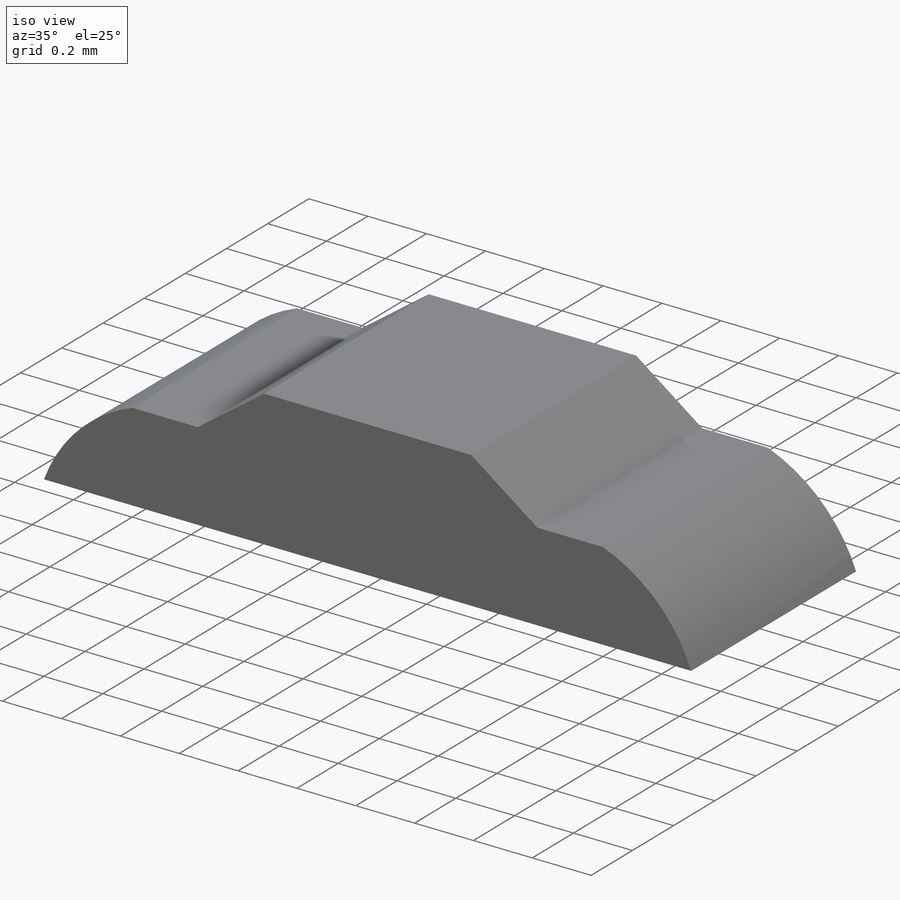
[diagram: iso view]
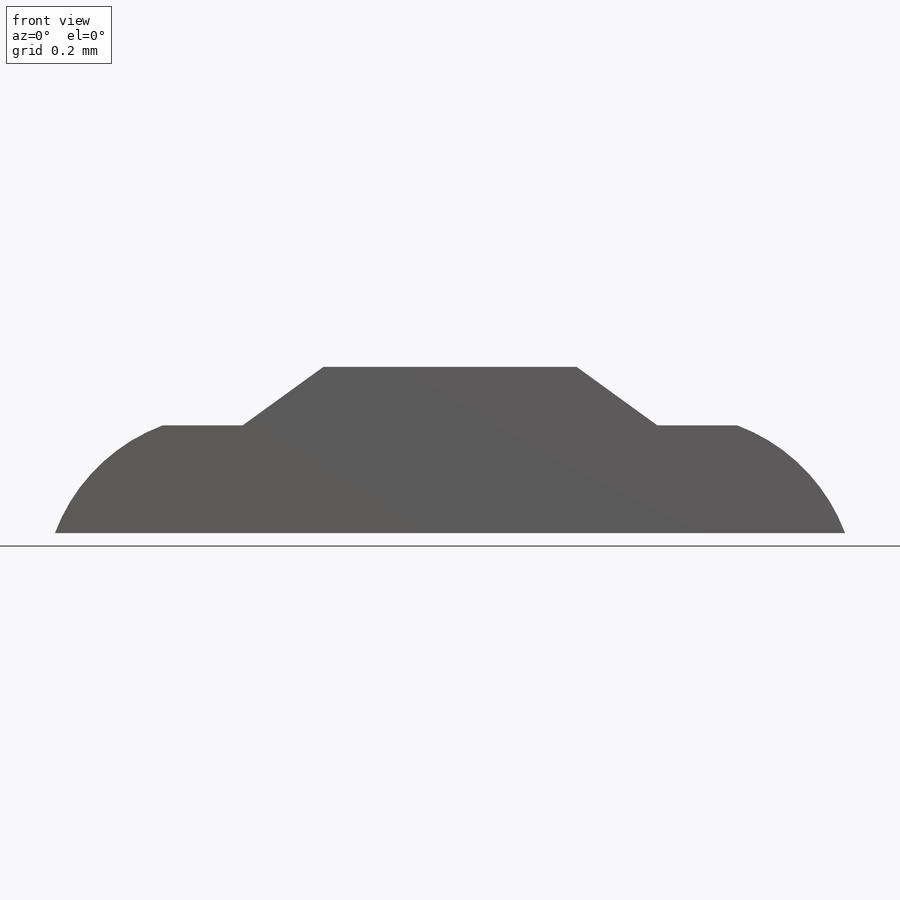
[diagram: front view]
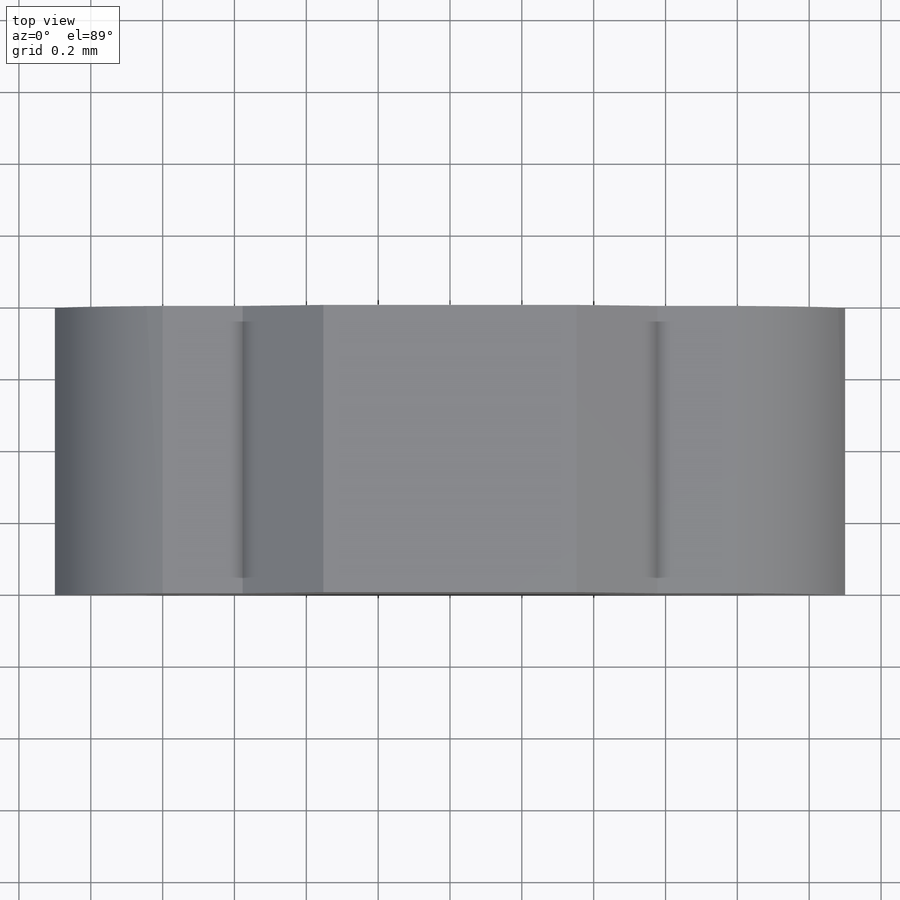
[diagram: top view]
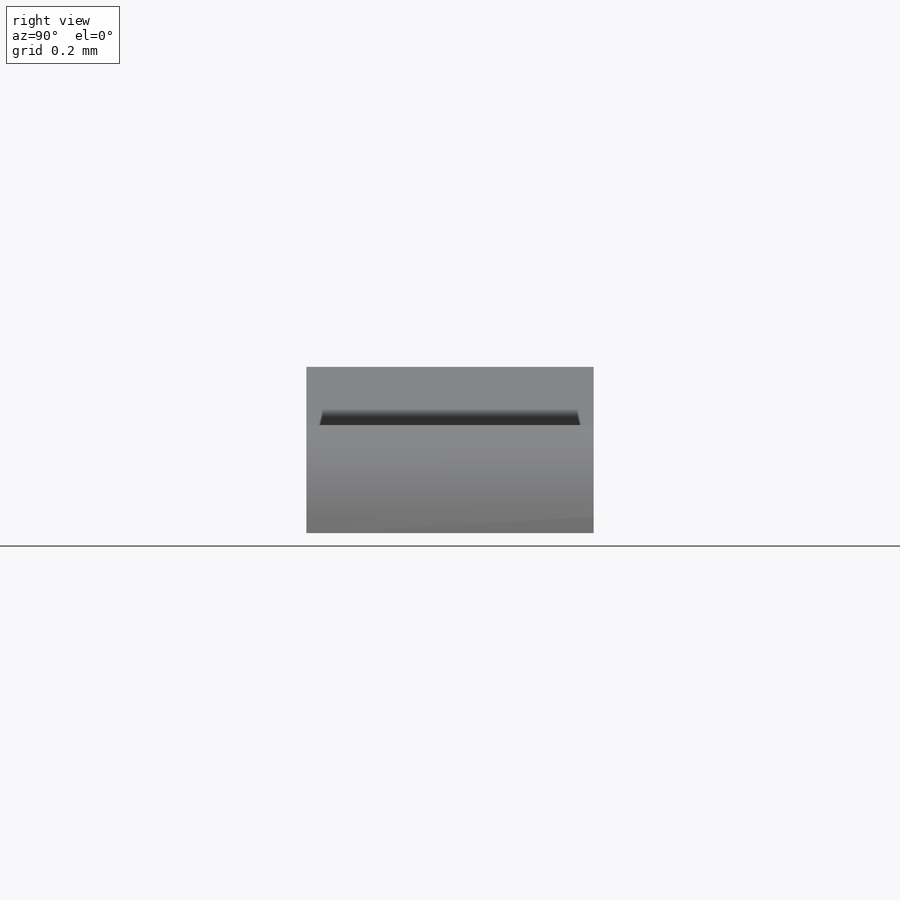
[diagram: right view]
SOLIDWORKS PART (.sldprt)
format: sldprt  version: not decoded by parser v0  size: 225,792 bytes
history: native  units: mm
features: sketch x4, extrude x3, material x1, revolve x1, mirror x1 (+11 scaffold rows collapsed)
feature tree (21):
  scaffold x11  (default folders/planes/origin — collapsed)
  material  "E-Glass Fiber"
  sketch  "Sketch1"  dims[c1.D5=0.5mm c1.D1=0.8mm c1.D2=0.4mm c1.D3=1.6mm c1.D4=0.8mm c2.D1=1.2mm c2.D2=0.8mm]
  extrude  "Boss-Extrude1"  Depth=0.3mm
  sketch  "Sketch3"  dims[D1=0.4mm D2=0.1mm]
  revolve  "Revolve1"  Angle=360deg
  sketch  "Esquisse1"  dims[D1=0.2mm D2=0.5mm]
  extrude  "Boss.-Extru.1"  Depth=0.8mm
  mirror  "Symétrie2"
  sketch  "Sketch2"  dims[c1.D1=0.4mm c1.D2=0.3mm c1.D3=1.2mm c2.D1=0.6mm c2.D3=0.7mm c2.D2=0.3mm c2.D4=0.7mm c3.D1=~0.153801mm]
  extrude  "Boss-Extrude5"  Depth=0.8mm
decode coverage: 8 of 9 modeling features carry decoded parameters
note: ~ marks probable driven/reference dimensions
note: suppression state not decoded; provenance and decode notes live in map.json
